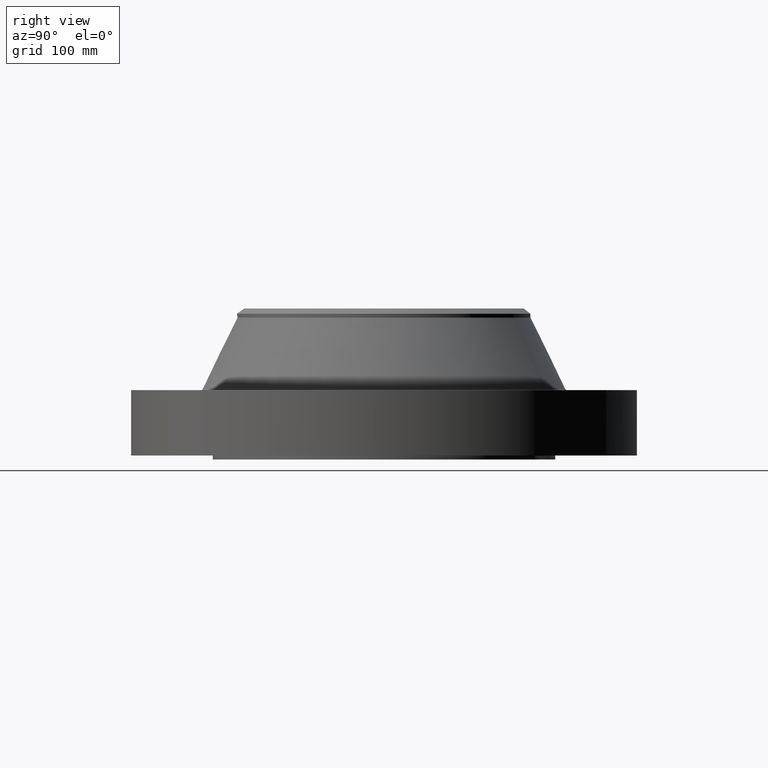
[diagram: clean part render]
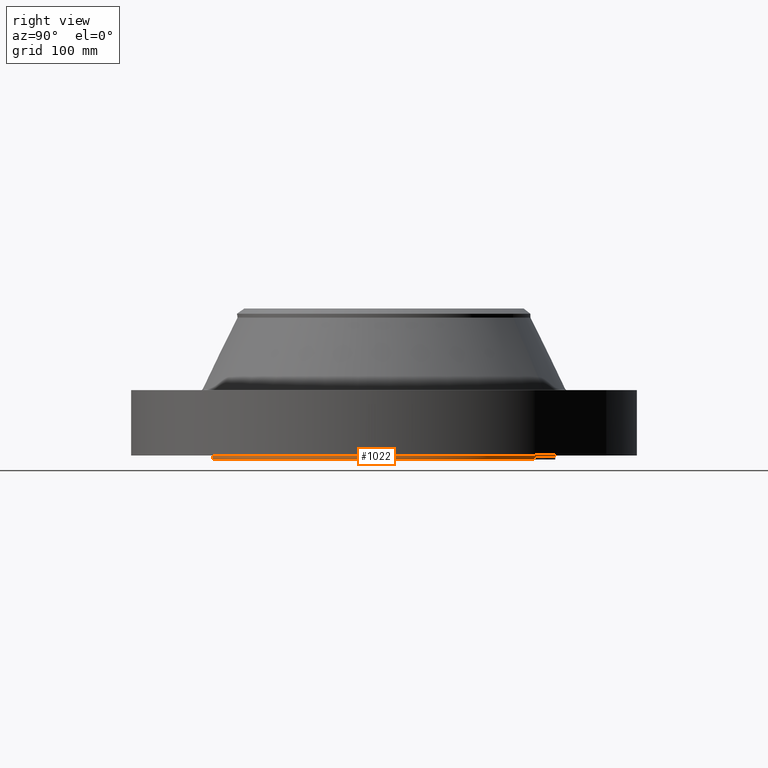
[diagram: same view with one face highlighted and labeled with its STEP entity id]
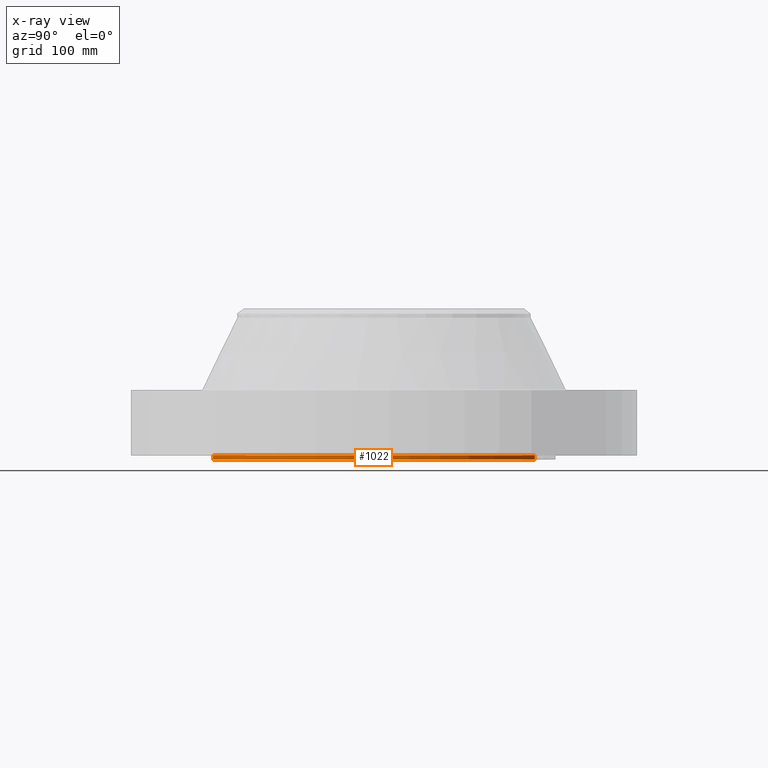
[diagram: x-ray of the same camera — body ghosted, the highlighted face saturated]
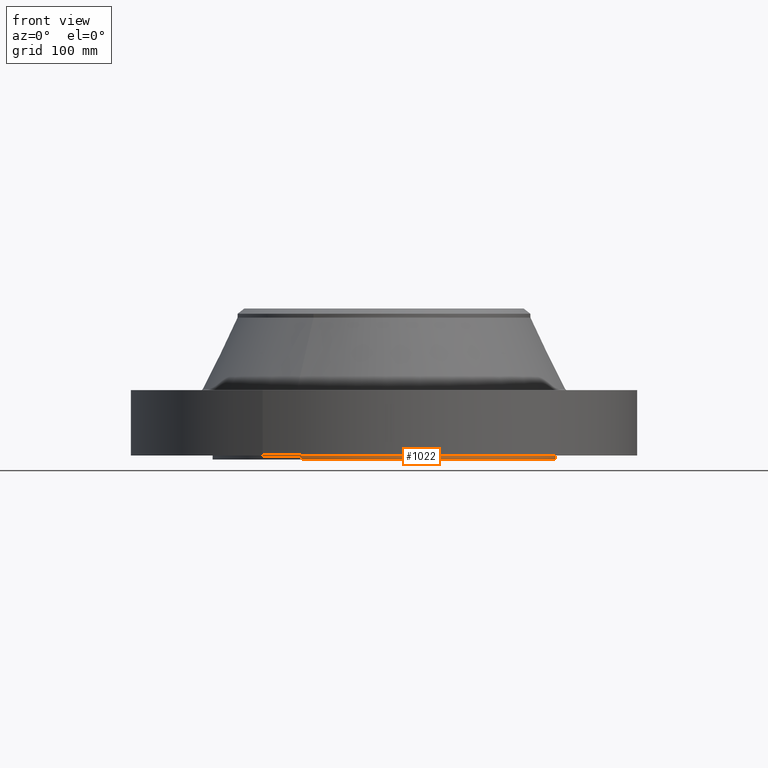
[diagram: same view with one face highlighted and labeled with its STEP entity id]
A machine part, right view. The second image highlights one B-rep face of the part: STEP entity #1022.
The next image is the same camera in x-ray: the body ghosted, the highlighted face saturated — about 0% of this face is hidden behind the body in this view.
A second angle (front view) of the same face is appended — the face is thin or edge-on in the first view.
In plain terms, the highlighted cylindrical surface (partial cylindrical patch) has radius 266.7 mm, axis along (0, 0, -1).
Its self-contained STEP definition (entity closure, byte-faithful):
#165=AXIS2_PLACEMENT_3D('Circle Axis2P3D',#163,#164,$) ;
#995=AXIS2_PLACEMENT_3D('Cylinder Axis2P3D',#992,#993,#994) ;
#999=AXIS2_PLACEMENT_3D('Circle Axis2P3D',#997,#998,$) ;
#163=CARTESIAN_POINT('Axis2P3D Location',(-1.28132675074E-011,-3.33451551585E-013,0.)) ;
#167=CARTESIAN_POINT('Vertex',(5.03396815534,9.21461689985,1.99987008581E-011)) ;
#169=CARTESIAN_POINT('Vertex',(-5.03396815535,-9.21461689985,1.99987008581E-011)) ;
#992=CARTESIAN_POINT('Axis2P3D Location',(0.,0.,4.37500000002)) ;
#997=CARTESIAN_POINT('Axis2P3D Location',(0.,0.,-0.249999999965)) ;
#1001=CARTESIAN_POINT('Vertex',(5.03396815532,9.21461689984,-0.250000000001)) ;
#1003=CARTESIAN_POINT('Vertex',(-5.03396815532,-9.21461689988,-0.250000000001)) ;
#1006=CARTESIAN_POINT('Line Origine',(5.03396815535,9.21461689985,-0.124999999973)) ;
#1011=CARTESIAN_POINT('Line Origine',(-5.03396815535,-9.21461689985,-0.124999999973)) ;
#164=DIRECTION('Axis2P3D Direction',(0.,0.,-0.0393700787402)) ;
#993=DIRECTION('Axis2P3D Direction',(0.,0.,-0.0393700787402)) ;
#994=DIRECTION('Axis2P3D XDirection',(0.0188750212049,0.0345504945626,0.)) ;
#998=DIRECTION('Axis2P3D Direction',(0.,0.,-0.0393700787402)) ;
#1007=DIRECTION('Vector Direction',(0.,0.,-0.0393700787402)) ;
#1012=DIRECTION('Vector Direction',(0.,0.,-0.0393700787402)) ;
#1008=VECTOR('Line Direction',#1007,0.0393700787402) ;
#1013=VECTOR('Line Direction',#1012,0.0393700787402) ;
#1017=ORIENTED_EDGE('',*,*,#1005,.F.) ;
#1018=ORIENTED_EDGE('',*,*,#1010,.T.) ;
#1019=ORIENTED_EDGE('',*,*,#171,.T.) ;
#1020=ORIENTED_EDGE('',*,*,#1015,.F.) ;
#1022=ADVANCED_FACE('PartBody',(#1021),#996,.T.) ;
#166=CIRCLE('generated circle',#165,10.5) ;
#1000=CIRCLE('generated circle',#999,10.5) ;
#996=CYLINDRICAL_SURFACE('generated cylinder',#995,10.5) ;
#171=EDGE_CURVE('',#168,#170,#166,.T.) ;
#1005=EDGE_CURVE('',#1002,#1004,#1000,.T.) ;
#1010=EDGE_CURVE('',#1002,#168,#1009,.F.) ;
#1015=EDGE_CURVE('',#1004,#170,#1014,.F.) ;
#1016=EDGE_LOOP('',(#1017,#1018,#1019,#1020)) ;
#1021=FACE_OUTER_BOUND('',#1016,.T.) ;
#1009=LINE('Line',#1006,#1008) ;
#1014=LINE('Line',#1011,#1013) ;
#168=VERTEX_POINT('',#167) ;
#170=VERTEX_POINT('',#169) ;
#1002=VERTEX_POINT('',#1001) ;
#1004=VERTEX_POINT('',#1003) ;